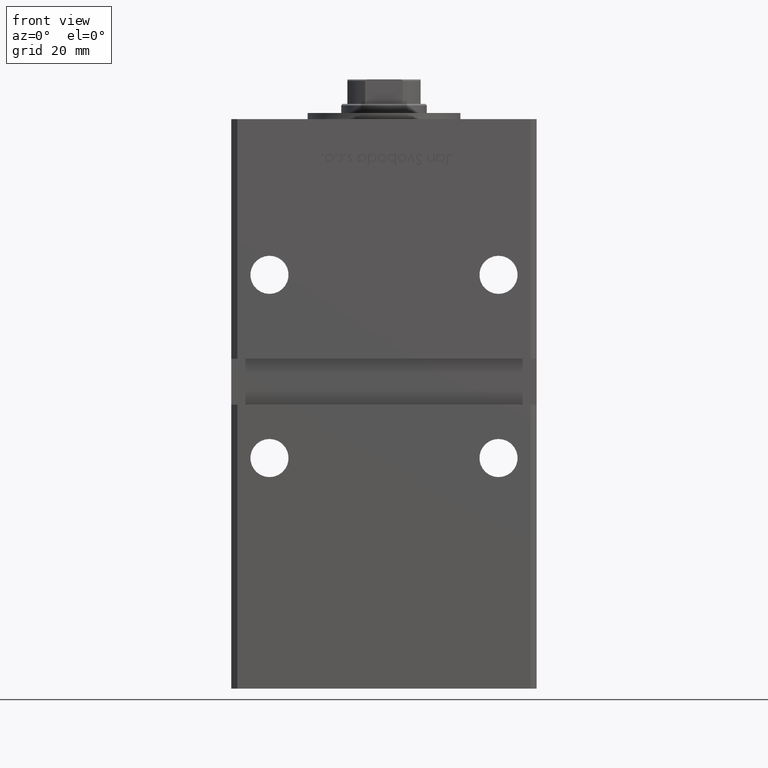
[diagram: clean part render]
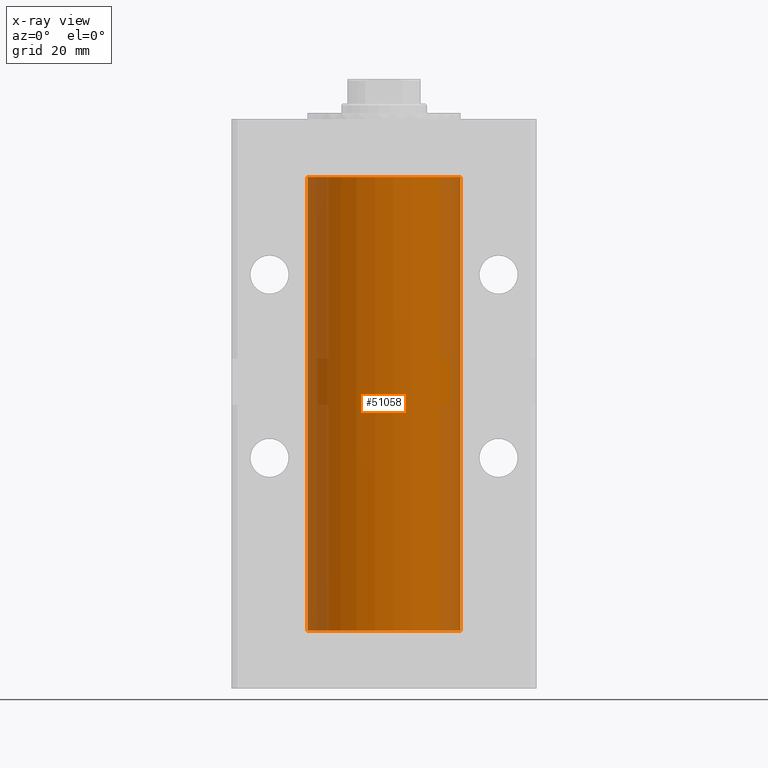
[diagram: x-ray — body ghosted, one internal face saturated and labeled with its STEP entity id]
A machine part, front view, then the same camera in x-ray: the body is ghosted and one INTERNAL B-rep face — a face not visible from any outside direction — is saturated and labeled: STEP entity #51058.
In plain terms, the highlighted cylindrical surface (partial cylindrical patch) has radius 25 mm, axis along (-0, -0, -1).
Its self-contained STEP definition (entity closure, byte-faithful):
#1962 = VERTEX_POINT ( 'NONE', #16797 ) ;
#2577 = DIRECTION ( 'NONE',  ( -0.000000000000000000, -0.000000000000000000, -1.000000000000000000 ) ) ;
#2962 = CARTESIAN_POINT ( 'NONE',  ( 0.000000000000000000, 0.000000000000000000, 0.000000000000000000 ) ) ;
#4765 = CARTESIAN_POINT ( 'NONE',  ( 0.000000000000000000, 0.000000000000000000, 148.5000000000000000 ) ) ;
#5385 = VECTOR ( 'NONE', #2577, 1000.000000000000000 ) ;
#6583 = VERTEX_POINT ( 'NONE', #41924 ) ;
#7048 = EDGE_CURVE ( 'NONE', #18437, #6583, #14921, .T. ) ;
#8084 = CIRCLE ( 'NONE', #47620, 25.00000000000000000 ) ;
#14921 = LINE ( 'NONE', #31341, #49670 ) ;
#15334 = CARTESIAN_POINT ( 'NONE',  ( 25.00000000000000000, 3.061616997868383043E-15, 148.5000000000000000 ) ) ;
#15373 = CARTESIAN_POINT ( 'NONE',  ( 0.000000000000000000, 0.000000000000000000, 148.5000000000000000 ) ) ;
#16447 = EDGE_LOOP ( 'NONE', ( #33546, #38082, #25948, #29712 ) ) ;
#16797 = CARTESIAN_POINT ( 'NONE',  ( 25.00000000000000000, 3.061616997868383043E-15, 0.000000000000000000 ) ) ;
#17550 = AXIS2_PLACEMENT_3D ( 'NONE', #15373, #31792, #30993 ) ;
#18437 = VERTEX_POINT ( 'NONE', #21049 ) ;
#20238 = EDGE_CURVE ( 'NONE', #6583, #1962, #36182, .T. ) ;
#21049 = CARTESIAN_POINT ( 'NONE',  ( -25.00000000000000000, 0.000000000000000000, 148.5000000000000000 ) ) ;
#22609 = DIRECTION ( 'NONE',  ( 1.000000000000000000, 0.000000000000000000, 0.000000000000000000 ) ) ;
#24681 = EDGE_CURVE ( 'NONE', #42427, #1962, #51556, .T. ) ;
#25948 = ORIENTED_EDGE ( 'NONE', *, *, #20238, .F. ) ;
#28759 = EDGE_CURVE ( 'NONE', #18437, #42427, #8084, .T. ) ;
#29296 = AXIS2_PLACEMENT_3D ( 'NONE', #2962, #32014, #22609 ) ;
#29531 = DIRECTION ( 'NONE',  ( 1.000000000000000000, 0.000000000000000000, 0.000000000000000000 ) ) ;
#29712 = ORIENTED_EDGE ( 'NONE', *, *, #7048, .F. ) ;
#30993 = DIRECTION ( 'NONE',  ( -1.000000000000000000, 0.000000000000000000, 0.000000000000000000 ) ) ;
#31341 = CARTESIAN_POINT ( 'NONE',  ( -25.00000000000000000, 0.000000000000000000, 148.5000000000000000 ) ) ;
#31792 = DIRECTION ( 'NONE',  ( -0.000000000000000000, -0.000000000000000000, -1.000000000000000000 ) ) ;
#32014 = DIRECTION ( 'NONE',  ( -0.000000000000000000, 0.000000000000000000, 1.000000000000000000 ) ) ;
#33546 = ORIENTED_EDGE ( 'NONE', *, *, #28759, .T. ) ;
#33830 = DIRECTION ( 'NONE',  ( -0.000000000000000000, 0.000000000000000000, 1.000000000000000000 ) ) ;
#35025 = CYLINDRICAL_SURFACE ( 'NONE', #17550, 25.00000000000000000 ) ;
#35827 = FACE_OUTER_BOUND ( 'NONE', #16447, .T. ) ;
#36182 = CIRCLE ( 'NONE', #29296, 25.00000000000000000 ) ;
#38082 = ORIENTED_EDGE ( 'NONE', *, *, #24681, .T. ) ;
#39444 = CARTESIAN_POINT ( 'NONE',  ( 25.00000000000000000, 3.061616997868383043E-15, 148.5000000000000000 ) ) ;
#41924 = CARTESIAN_POINT ( 'NONE',  ( -25.00000000000000000, 0.000000000000000000, 0.000000000000000000 ) ) ;
#42427 = VERTEX_POINT ( 'NONE', #15334 ) ;
#44267 = DIRECTION ( 'NONE',  ( -0.000000000000000000, -0.000000000000000000, -1.000000000000000000 ) ) ;
#47620 = AXIS2_PLACEMENT_3D ( 'NONE', #4765, #33830, #29531 ) ;
#49670 = VECTOR ( 'NONE', #44267, 1000.000000000000000 ) ;
#51058 = ADVANCED_FACE ( 'NONE', ( #35827 ), #35025, .F. ) ;
#51556 = LINE ( 'NONE', #39444, #5385 ) ;